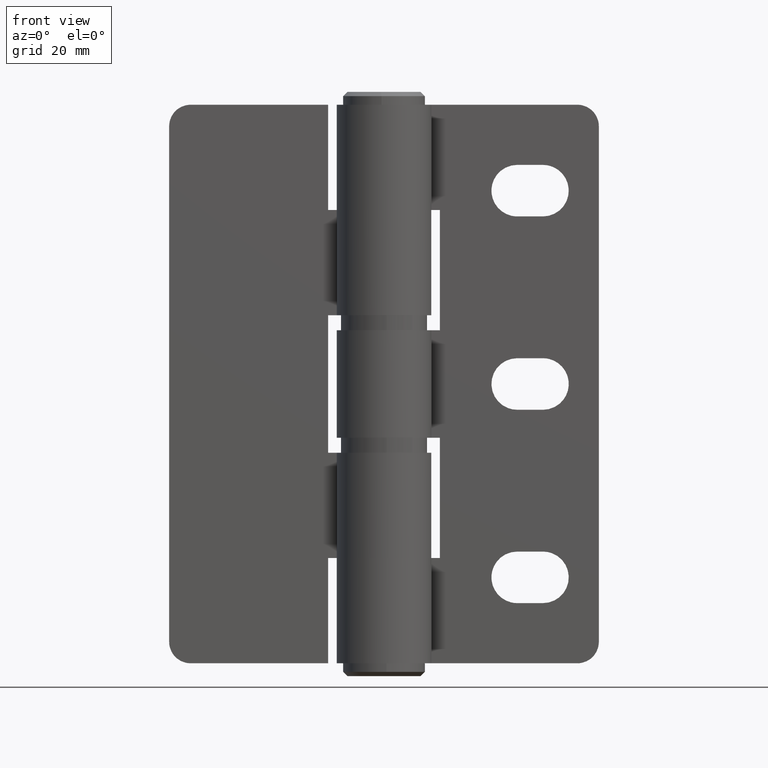
[diagram: clean part render]
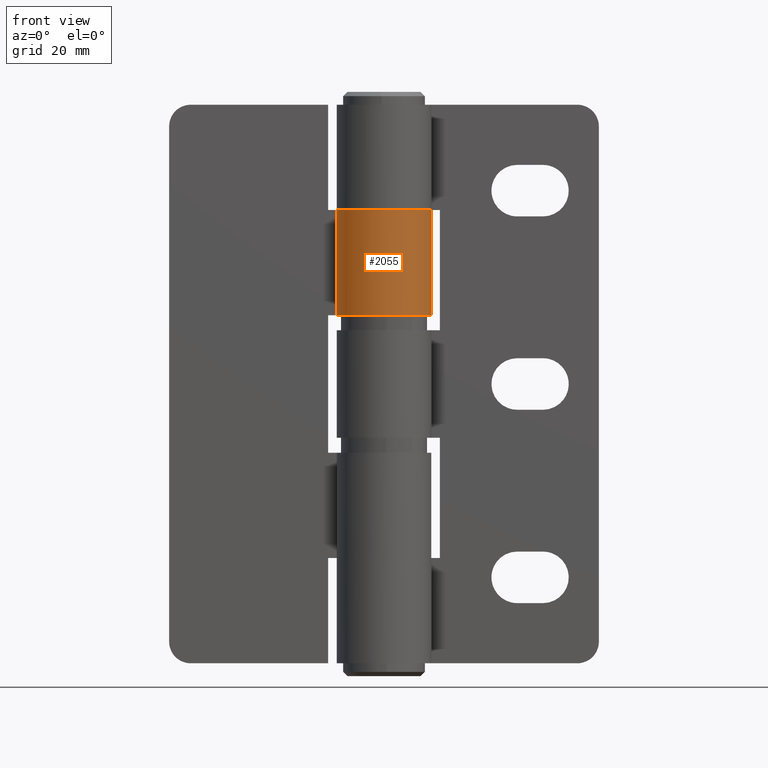
[diagram: same view with one face highlighted and labeled with its STEP entity id]
A machine part, front view. The second image highlights one B-rep face of the part: STEP entity #2055.
In plain terms, the highlighted face is a freeform B-spline surface patch.
Its self-contained STEP definition (entity closure, byte-faithful):
#1532=CARTESIAN_POINT('',(-9.251891698458209,5.950000000000000,105.500000000000000));
#1533=VERTEX_POINT('',#1532);
#1539=CARTESIAN_POINT('',(0.0,11.0,105.500000000000000));
#1540=VERTEX_POINT('',#1539);
#1541=CARTESIAN_POINT('',(0.0,11.0,105.500000000000000));
#1542=CARTESIAN_POINT('',(8.545764332510323,11.0,105.500000000000000));
#1543=CARTESIAN_POINT('',(10.658527187710140,2.719521683834106,105.500000000000000));
#1544=CARTESIAN_POINT('',(12.771290042909955,-5.560956632331798,105.500000000000000));
#1545=CARTESIAN_POINT('',(5.270199237220546,-9.655309420210207,105.500000000000000));
#1546=CARTESIAN_POINT('',(-2.230891568468854,-13.749662208088614,105.500000000000000));
#1547=CARTESIAN_POINT('',(-8.052632441574282,-7.493671380632152,105.500000000000000));
#1548=CARTESIAN_POINT('',(-13.874373314679705,-1.237680553175694,105.500000000000000));
#1549=CARTESIAN_POINT('',(-9.251891698458215,5.949999999999996,105.500000000000000));
#1557=(BOUNDED_CURVE()B_SPLINE_CURVE(2,(#1541,#1542,#1543,#1544,#1545,#1546,#1547,#1548,#1549),.UNSPECIFIED.,.F.,.U.)B_SPLINE_CURVE_WITH_KNOTS((3,2,2,2,3),(0.0,0.250000000000000,0.500000000000000,0.750000000000000,1.0),.UNSPECIFIED.)CURVE()GEOMETRIC_REPRESENTATION_ITEM()RATIONAL_B_SPLINE_CURVE((1.0,0.789692738976660,1.0,0.789692738976660,1.0,0.789692738976660,1.0,0.789692738976660,1.0))REPRESENTATION_ITEM(''));
#1558=EDGE_CURVE('',#1540,#1533,#1557,.T.);
#1590=CARTESIAN_POINT('',(0.0,11.0,81.0));
#1591=VERTEX_POINT('',#1590);
#1597=CARTESIAN_POINT('',(-9.251891698458209,5.950000000000000,81.0));
#1598=VERTEX_POINT('',#1597);
#1599=CARTESIAN_POINT('',(-9.251891698458211,5.950000000000002,81.0));
#1600=CARTESIAN_POINT('',(-13.874373314679708,-1.237680553175686,81.000000000000014));
#1601=CARTESIAN_POINT('',(-8.052632441574287,-7.493671380632148,81.0));
#1602=CARTESIAN_POINT('',(-2.230891568468870,-13.749662208088605,81.000000000000014));
#1603=CARTESIAN_POINT('',(5.270199237220531,-9.655309420210214,81.0));
#1604=CARTESIAN_POINT('',(12.771290042909945,-5.560956632331815,81.000000000000014));
#1605=CARTESIAN_POINT('',(10.658527187710140,2.719521683834099,81.0));
#1606=CARTESIAN_POINT('',(8.545764332510327,11.0,81.000000000000014));
#1607=CARTESIAN_POINT('',(0.0,11.0,81.0));
#1615=(BOUNDED_CURVE()B_SPLINE_CURVE(2,(#1599,#1600,#1601,#1602,#1603,#1604,#1605,#1606,#1607),.UNSPECIFIED.,.F.,.U.)B_SPLINE_CURVE_WITH_KNOTS((3,2,2,2,3),(0.0,0.250000000000000,0.500000000000000,0.750000000000000,1.0),.UNSPECIFIED.)CURVE()GEOMETRIC_REPRESENTATION_ITEM()RATIONAL_B_SPLINE_CURVE((1.0,0.789692738976660,1.0,0.789692738976660,1.0,0.789692738976660,1.0,0.789692738976660,1.0))REPRESENTATION_ITEM(''));
#1616=EDGE_CURVE('',#1598,#1591,#1615,.T.);
#2009=CARTESIAN_POINT('',(0.0,11.0,105.500000000000000));
#2010=CARTESIAN_POINT('',(0.0,11.0,81.0));
#2011=QUASI_UNIFORM_CURVE('',1,(#2009,#2010),.UNSPECIFIED.,.F.,.U.);
#2012=EDGE_CURVE('',#1540,#1591,#2011,.T.);
#2023=CARTESIAN_POINT('',(-9.092968463812445,6.190147374345160,106.112500000000000));
#2024=CARTESIAN_POINT('',(-9.092968463812445,6.190147374345160,80.372187499999995));
#2025=CARTESIAN_POINT('',(-16.782793553098873,-5.105760913543087,106.112500000000010));
#2026=CARTESIAN_POINT('',(-16.782793553098873,-5.105760913543087,80.372187500000010));
#2027=CARTESIAN_POINT('',(-4.105040991163514,-10.205324025275591,106.112500000000000));
#2028=CARTESIAN_POINT('',(-4.105040991163514,-10.205324025275591,80.372187499999995));
#2029=CARTESIAN_POINT('',(8.572711570771839,-15.304887137008091,106.112500000000010));
#2030=CARTESIAN_POINT('',(8.572711570771839,-15.304887137008091,80.372187500000010));
#2031=CARTESIAN_POINT('',(10.846631895434470,-1.830458009609506,106.112500000000000));
#2032=CARTESIAN_POINT('',(10.846631895434470,-1.830458009609506,80.372187499999995));
#2033=CARTESIAN_POINT('',(13.120552220097094,11.643971117789079,106.112500000000010));
#2034=CARTESIAN_POINT('',(13.120552220097094,11.643971117789079,80.372187500000010));
#2035=CARTESIAN_POINT('',(-0.528613520992082,10.987291192346920,106.112500000000000));
#2036=CARTESIAN_POINT('',(-0.528613520992082,10.987291192346920,80.372187499999995));
#2044=(BOUNDED_SURFACE()B_SPLINE_SURFACE(1,2,((#2023,#2025,#2027,#2029,#2031,#2033,#2035),(#2024,#2026,#2028,#2030,#2032,#2034,#2036)),.UNSPECIFIED.,.F.,.F.,.U.)B_SPLINE_SURFACE_WITH_KNOTS((2,2),(3,2,2,3),(0.0,25.740312500000019),(0.0,21.065532750893549,42.131065501787091,63.196598252680637),.UNSPECIFIED.)GEOMETRIC_REPRESENTATION_ITEM()RATIONAL_B_SPLINE_SURFACE(((1.0,0.627057105746662,1.0,0.627057105746662,1.0,0.627057105746662,1.0),(1.0,0.627057105746662,1.0,0.627057105746662,1.0,0.627057105746662,1.0)))REPRESENTATION_ITEM('')SURFACE());
#2045=ORIENTED_EDGE('',*,*,#1558,.T.);
#2046=CARTESIAN_POINT('',(-9.251891698458209,5.950000000000000,105.500000000000000));
#2047=CARTESIAN_POINT('',(-9.251891698458209,5.950000000000000,81.0));
#2048=QUASI_UNIFORM_CURVE('',1,(#2046,#2047),.UNSPECIFIED.,.F.,.U.);
#2049=EDGE_CURVE('',#1533,#1598,#2048,.T.);
#2050=ORIENTED_EDGE('',*,*,#2049,.T.);
#2051=ORIENTED_EDGE('',*,*,#1616,.T.);
#2052=ORIENTED_EDGE('',*,*,#2012,.F.);
#2053=EDGE_LOOP('',(#2045,#2050,#2051,#2052));
#2054=FACE_OUTER_BOUND('',#2053,.T.);
#2055=ADVANCED_FACE('',(#2054),#2044,.T.);